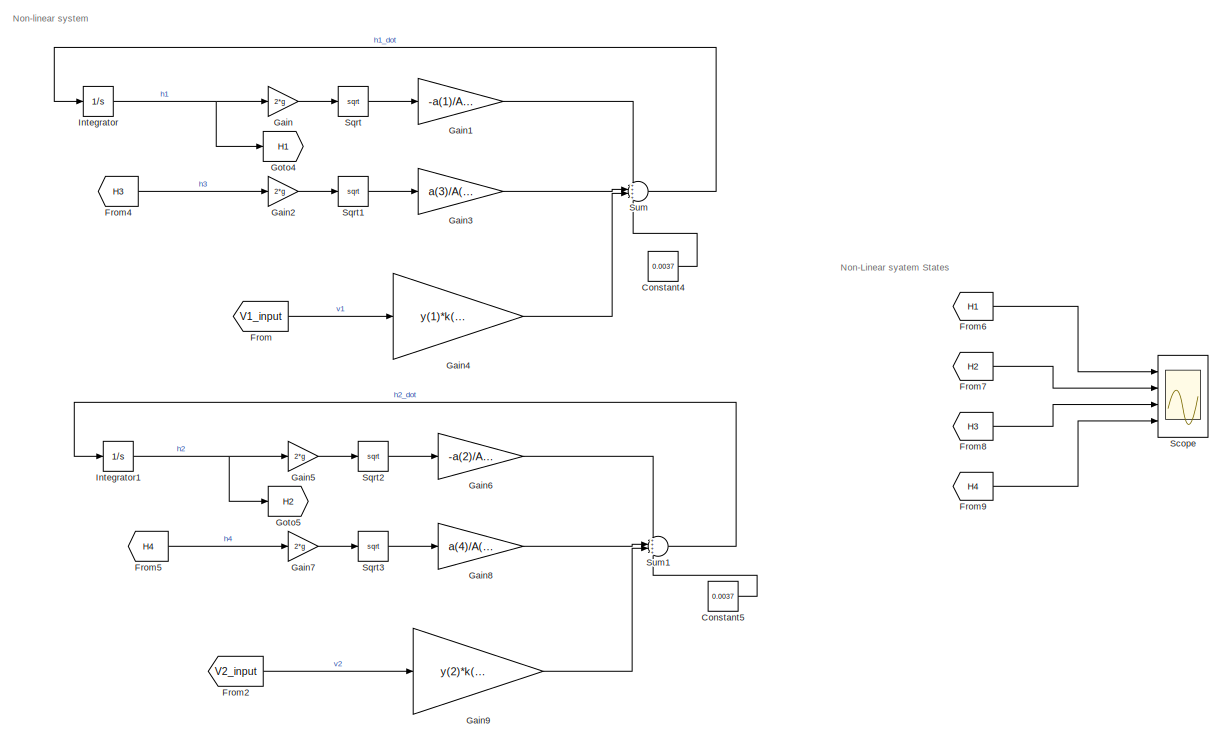
[diagram: root canvas - part 1/3, top right region]
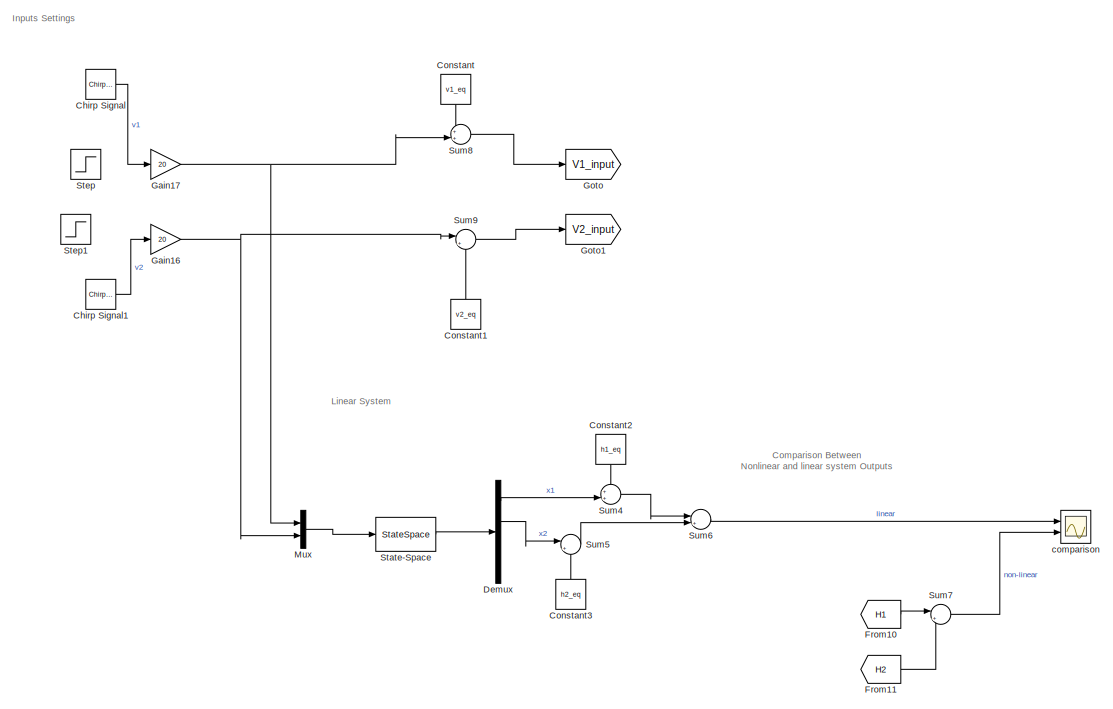
[diagram: root canvas - part 2/3, middle left region]
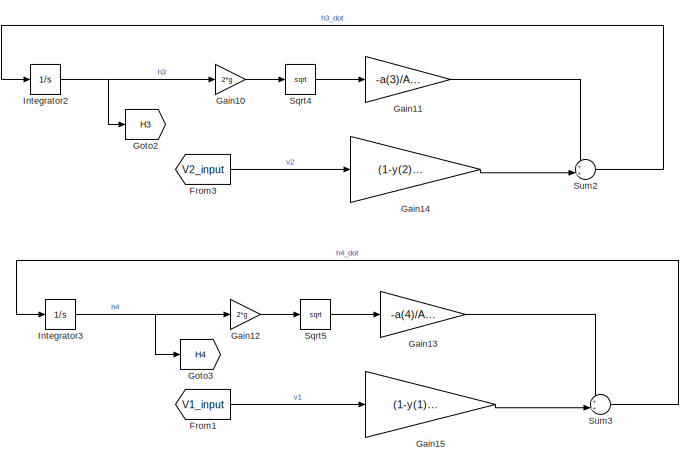
[diagram: root canvas - part 3/3, bottom right region]
MODEL slx_fa9763044b56
KIND model
CONFIG AbsTol = auto
CONFIG EnableMultiTasking = off
CONFIG FixedStep = 0.001
CONFIG MaxStep = auto
CONFIG MinStep = auto
CONFIG RelTol = 1e-3
CONFIG SampleTimeConstraint = Unconstrained
CONFIG Solver = FixedStepAuto
CONFIG SolverName = FixedStepAuto
CONFIG StartTime = 0.0
CONFIG StopTime = 20
BLOCK [Reference] Chirp Signal  REF=simulink/Sources/Chirp Signal
  Ports = [0, 1]
  SourceBlock = simulink/Sources/Chirp Signal
  SourceProductBaseCode = SL
  SourceProductName = Simulink
  SourceType = chirp
BLOCK [Reference] Chirp Signal1  REF=simulink/Sources/Chirp Signal
  Ports = [0, 1]
  SourceBlock = simulink/Sources/Chirp Signal
  SourceProductBaseCode = SL
  SourceProductName = Simulink
  SourceType = chirp
BLOCK [Constant] Constant
  Value = v1_eq
BLOCK [Constant] Constant1
  Value = v2_eq
BLOCK [Constant] Constant2
  Value = h1_eq
BLOCK [Constant] Constant3
  Value = h2_eq
BLOCK [Constant] Constant4
  Value = 0.0037
BLOCK [Constant] Constant5
  Value = 0.0037
BLOCK [Demux] Demux
  DisplayOption = bar
  Ports = [1, 4]
BLOCK [From] From
  GotoTag = V1_input
BLOCK [From] From1
  GotoTag = V1_input
BLOCK [From] From10
  GotoTag = H1
BLOCK [From] From11
  GotoTag = H2
BLOCK [From] From2
  GotoTag = V2_input
BLOCK [From] From3
  GotoTag = V2_input
BLOCK [From] From4
  GotoTag = H3
BLOCK [From] From5
  GotoTag = H4
BLOCK [From] From6
  GotoTag = H1
BLOCK [From] From7
  GotoTag = H2
BLOCK [From] From8
  GotoTag = H3
BLOCK [From] From9
  GotoTag = H4
BLOCK [Gain] Gain
  Gain = 2*g
  OutDataTypeStr = Inherit: Inherit via internal rule
  ParamDataTypeStr = Inherit: Inherit via internal rule
  SaturateOnIntegerOverflow = off
BLOCK [Gain] Gain1
  Gain = -a(1)/A(1)
  OutDataTypeStr = Inherit: Inherit via internal rule
  ParamDataTypeStr = Inherit: Inherit via internal rule
  SaturateOnIntegerOverflow = off
BLOCK [Gain] Gain10
  Gain = 2*g
  OutDataTypeStr = Inherit: Inherit via internal rule
  ParamDataTypeStr = Inherit: Inherit via internal rule
  SaturateOnIntegerOverflow = off
BLOCK [Gain] Gain11
  Gain = -a(3)/A(3)
  OutDataTypeStr = Inherit: Inherit via internal rule
  ParamDataTypeStr = Inherit: Inherit via internal rule
  SaturateOnIntegerOverflow = off
BLOCK [Gain] Gain12
  Gain = 2*g
  OutDataTypeStr = Inherit: Inherit via internal rule
  ParamDataTypeStr = Inherit: Inherit via internal rule
  SaturateOnIntegerOverflow = off
BLOCK [Gain] Gain13
  Gain = -a(4)/A(4)
  OutDataTypeStr = Inherit: Inherit via internal rule
  ParamDataTypeStr = Inherit: Inherit via internal rule
  SaturateOnIntegerOverflow = off
BLOCK [Gain] Gain14
  Gain = (1-y(2))*k(2)/A(3)
  OutDataTypeStr = Inherit: Inherit via internal rule
  ParamDataTypeStr = Inherit: Inherit via internal rule
  SaturateOnIntegerOverflow = off
BLOCK [Gain] Gain15
  Gain = (1-y(1))*k(1)/A(4)
  OutDataTypeStr = Inherit: Inherit via internal rule
  ParamDataTypeStr = Inherit: Inherit via internal rule
  SaturateOnIntegerOverflow = off
BLOCK [Gain] Gain16
  Gain = 20
  OutDataTypeStr = Inherit: Inherit via internal rule
  ParamDataTypeStr = Inherit: Inherit via internal rule
  SaturateOnIntegerOverflow = off
BLOCK [Gain] Gain17
  Gain = 20
  OutDataTypeStr = Inherit: Inherit via internal rule
  ParamDataTypeStr = Inherit: Inherit via internal rule
  SaturateOnIntegerOverflow = off
BLOCK [Gain] Gain2
  Gain = 2*g
  OutDataTypeStr = Inherit: Inherit via internal rule
  ParamDataTypeStr = Inherit: Inherit via internal rule
  SaturateOnIntegerOverflow = off
BLOCK [Gain] Gain3
  Gain = a(3)/A(1)
  OutDataTypeStr = Inherit: Inherit via internal rule
  ParamDataTypeStr = Inherit: Inherit via internal rule
  SaturateOnIntegerOverflow = off
BLOCK [Gain] Gain4
  Gain = y(1)*k(1)/A(1)
  OutDataTypeStr = Inherit: Inherit via internal rule
  ParamDataTypeStr = Inherit: Inherit via internal rule
  SaturateOnIntegerOverflow = off
BLOCK [Gain] Gain5
  Gain = 2*g
  OutDataTypeStr = Inherit: Inherit via internal rule
  ParamDataTypeStr = Inherit: Inherit via internal rule
  SaturateOnIntegerOverflow = off
BLOCK [Gain] Gain6
  Gain = -a(2)/A(2)
  OutDataTypeStr = Inherit: Inherit via internal rule
  ParamDataTypeStr = Inherit: Inherit via internal rule
  SaturateOnIntegerOverflow = off
BLOCK [Gain] Gain7
  Gain = 2*g
  OutDataTypeStr = Inherit: Inherit via internal rule
  ParamDataTypeStr = Inherit: Inherit via internal rule
  SaturateOnIntegerOverflow = off
BLOCK [Gain] Gain8
  Gain = a(4)/A(2)
  OutDataTypeStr = Inherit: Inherit via internal rule
  ParamDataTypeStr = Inherit: Inherit via internal rule
  SaturateOnIntegerOverflow = off
BLOCK [Gain] Gain9
  Gain = y(2)*k(2)/A(2)
  OutDataTypeStr = Inherit: Inherit via internal rule
  ParamDataTypeStr = Inherit: Inherit via internal rule
  SaturateOnIntegerOverflow = off
BLOCK [Goto] Goto
  GotoTag = V1_input
BLOCK [Goto] Goto1
  GotoTag = V2_input
BLOCK [Goto] Goto2
  GotoTag = H3
BLOCK [Goto] Goto3
  GotoTag = H4
BLOCK [Goto] Goto4
  GotoTag = H1
BLOCK [Goto] Goto5
  GotoTag = H2
BLOCK [Integrator] Integrator
  InitialCondition = h1_eq
  Ports = [1, 1]
BLOCK [Integrator] Integrator1
  InitialCondition = h2_eq
  Ports = [1, 1]
BLOCK [Integrator] Integrator2
  InitialCondition = h3_eq
  Ports = [1, 1]
BLOCK [Integrator] Integrator3
  InitialCondition = h4_eq
  Ports = [1, 1]
BLOCK [Mux] Mux
  DisplayOption = bar
  Inputs = 2
  Ports = [2, 1]
BLOCK [Scope] Scope
  Floating = off
  NumInputPorts = 4
  Ports = [4]
  ScopeSpecificationString = Simulink.scopes.TimeScopeBlockCfg('CurrentConfiguration', extmgr.ConfigurationSet(extmgr.Configuration('Core','General UI',true,'FigureColor',[1 1 1]),extmgr.Configuration('Core','Source UI',true),extmgr.Configuration('Sources','WiredSimulink',true),extmgr.Configuration('Visuals','Time Domain',true,'SerializedDisplays',{struct('MinYLimReal','-0.08787','MaxYLimReal','15.34182','YLabelReal','','MinY...<+1811ch>
BLOCK [Sqrt] Sqrt
BLOCK [Sqrt] Sqrt1
BLOCK [Sqrt] Sqrt2
BLOCK [Sqrt] Sqrt3
BLOCK [Sqrt] Sqrt4
BLOCK [Sqrt] Sqrt5
BLOCK [StateSpace] State-Space
  A = Amat
  B = Bmat
  C = [1 0 0 0;0 1 0 0;0 0 1 0;0 0 0 1]
  D = [0 0;0 0 ;0 0 ;0 0]
  InitialCondition = 0
  Ports = [1, 1]
BLOCK [Step] Step
  After = 3.5
  Commented = on
  SampleTime = 0
BLOCK [Step] Step1
  After = 3.5
  Commented = on
  SampleTime = 0
BLOCK [Sum] Sum
  IconShape = round
  InputSameDT = off
  Inputs = ++++
  OutDataTypeStr = Inherit: Inherit via internal rule
  Ports = [4, 1]
  SaturateOnIntegerOverflow = off
BLOCK [Sum] Sum1
  IconShape = round
  InputSameDT = off
  Inputs = ++++
  OutDataTypeStr = Inherit: Inherit via internal rule
  Ports = [4, 1]
  SaturateOnIntegerOverflow = off
BLOCK [Sum] Sum2
  IconShape = round
  InputSameDT = off
  Inputs = ++|
  OutDataTypeStr = Inherit: Inherit via internal rule
  Ports = [2, 1]
  SaturateOnIntegerOverflow = off
BLOCK [Sum] Sum3
  IconShape = round
  InputSameDT = off
  Inputs = ++|
  OutDataTypeStr = Inherit: Inherit via internal rule
  Ports = [2, 1]
  SaturateOnIntegerOverflow = off
BLOCK [Sum] Sum4
  IconShape = round
  InputSameDT = off
  Inputs = ++|
  OutDataTypeStr = Inherit: Inherit via internal rule
  Ports = [2, 1]
  SaturateOnIntegerOverflow = off
BLOCK [Sum] Sum5
  IconShape = round
  InputSameDT = off
  Inputs = |++
  OutDataTypeStr = Inherit: Inherit via internal rule
  Ports = [2, 1]
  SaturateOnIntegerOverflow = off
BLOCK [Sum] Sum6
  IconShape = round
  InputSameDT = off
  Inputs = |++
  OutDataTypeStr = Inherit: Inherit via internal rule
  Ports = [2, 1]
  SaturateOnIntegerOverflow = off
BLOCK [Sum] Sum7
  IconShape = round
  InputSameDT = off
  Inputs = |++
  OutDataTypeStr = Inherit: Inherit via internal rule
  Ports = [2, 1]
  SaturateOnIntegerOverflow = off
BLOCK [Sum] Sum8
  IconShape = round
  InputSameDT = off
  Inputs = ++|
  OutDataTypeStr = Inherit: Inherit via internal rule
  Ports = [2, 1]
  SaturateOnIntegerOverflow = off
BLOCK [Sum] Sum9
  IconShape = round
  InputSameDT = off
  Inputs = |++
  OutDataTypeStr = Inherit: Inherit via internal rule
  Ports = [2, 1]
  SaturateOnIntegerOverflow = off
BLOCK [Scope] comparison
  Floating = off
  NumInputPorts = 2
  Ports = [2]
  ScopeSpecificationString = Simulink.scopes.TimeScopeBlockCfg('CurrentConfiguration', extmgr.ConfigurationSet(extmgr.Configuration('Core','General UI',true,'FigureColor',[1 1 1]),extmgr.Configuration('Core','Source UI',true),extmgr.Configuration('Sources','WiredSimulink',true,'DataLoggingVariableName','ScopeData1'),extmgr.Configuration('Visuals','Time Domain',true,'SerializedDisplays',{struct('MinYLimReal','22.95224','MaxYLi...<+1709ch>
ANNOTATION (root): Comparison Between Nonlinear and linear system Outputs
ANNOTATION (root): Inputs Settings
ANNOTATION (root): Linear System
ANNOTATION (root): Non-Linear syatem States
ANNOTATION (root): Non-linear system
LINE Chirp Signal1:1 -> Gain16:1
LINE Chirp Signal:1 -> Gain17:1
LINE Constant1:1 -> Sum9:2
LINE Constant2:1 -> Sum4:1
LINE Constant3:1 -> Sum5:2
LINE Constant4:1 -> Sum:4
LINE Constant5:1 -> Sum1:4
LINE Constant:1 -> Sum8:1
LINE Demux:1 -> Sum4:2
LINE Demux:2 -> Sum5:1
LINE From10:1 -> Sum7:1
LINE From11:1 -> Sum7:2
LINE From1:1 -> Gain15:1
LINE From2:1 -> Gain9:1
LINE From3:1 -> Gain14:1
LINE From4:1 -> Gain2:1
LINE From5:1 -> Gain7:1
LINE From6:1 -> Scope:1
LINE From7:1 -> Scope:2
LINE From8:1 -> Scope:3
LINE From9:1 -> Scope:4
LINE From:1 -> Gain4:1
LINE Gain10:1 -> Sqrt4:1
LINE Gain11:1 -> Sum2:1
LINE Gain12:1 -> Sqrt5:1
LINE Gain13:1 -> Sum3:1
LINE Gain14:1 -> Sum2:2
LINE Gain15:1 -> Sum3:2
NET Gain16:1 -> Mux:2, Sum9:1
NET Gain17:1 -> Mux:1, Sum8:2
LINE Gain1:1 -> Sum:1
LINE Gain2:1 -> Sqrt1:1
LINE Gain3:1 -> Sum:2
LINE Gain4:1 -> Sum:3
LINE Gain5:1 -> Sqrt2:1
LINE Gain6:1 -> Sum1:1
LINE Gain7:1 -> Sqrt3:1
LINE Gain8:1 -> Sum1:2
LINE Gain9:1 -> Sum1:3
LINE Gain:1 -> Sqrt:1
NET Integrator1:1 -> Gain5:1, Goto5:1
NET Integrator2:1 -> Gain10:1, Goto2:1
NET Integrator3:1 -> Gain12:1, Goto3:1
NET Integrator:1 -> Gain:1, Goto4:1
LINE Mux:1 -> State-Space:1
LINE Sqrt1:1 -> Gain3:1
LINE Sqrt2:1 -> Gain6:1
LINE Sqrt3:1 -> Gain8:1
LINE Sqrt4:1 -> Gain11:1
LINE Sqrt5:1 -> Gain13:1
LINE Sqrt:1 -> Gain1:1
LINE State-Space:1 -> Demux:1
LINE Sum1:1 -> Integrator1:1
LINE Sum2:1 -> Integrator2:1
LINE Sum3:1 -> Integrator3:1
LINE Sum4:1 -> Sum6:1
LINE Sum5:1 -> Sum6:2
LINE Sum6:1 -> comparison:1
LINE Sum7:1 -> comparison:2
LINE Sum8:1 -> Goto:1
LINE Sum9:1 -> Goto1:1
LINE Sum:1 -> Integrator:1
note: NET lines group one-source signal fan-out (src -> all destinations, sorted); 1:1 wires keep LINE
